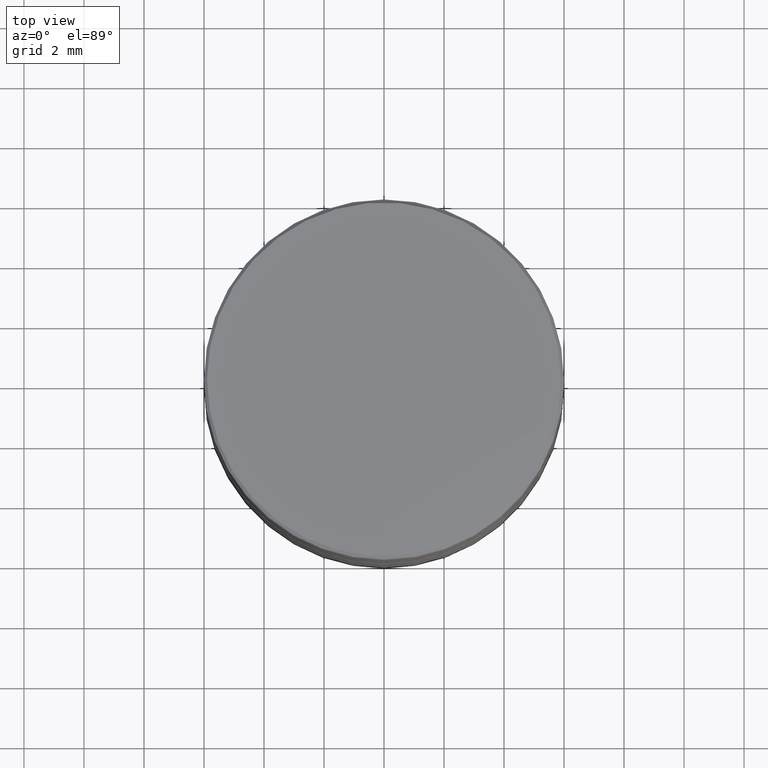
[diagram: clean part render]
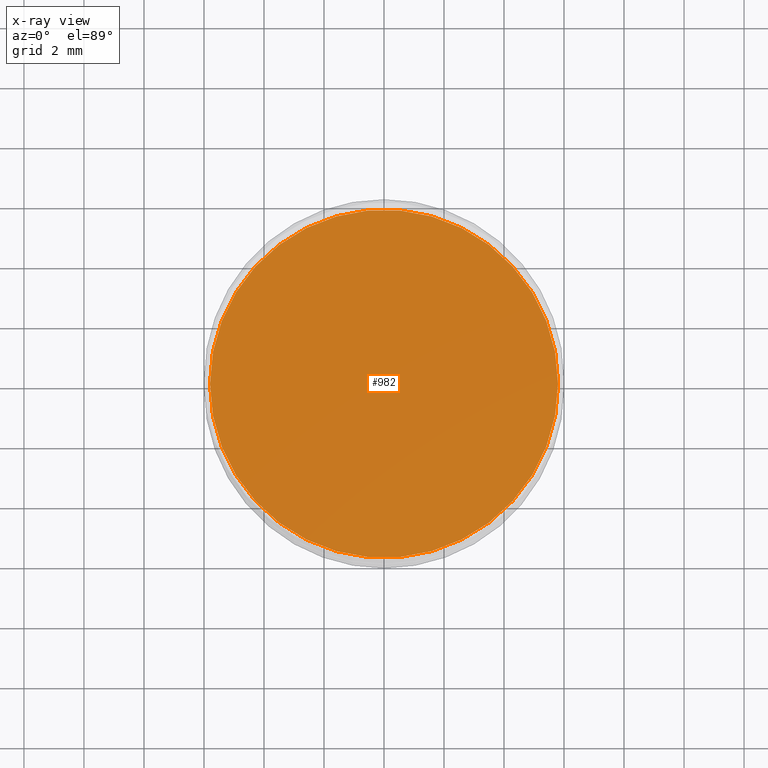
[diagram: x-ray — body ghosted, one internal face saturated and labeled with its STEP entity id]
A machine part, top view, then the same camera in x-ray: the body is ghosted and one INTERNAL B-rep face — a face not visible from any outside direction — is saturated and labeled: STEP entity #982.
In plain terms, the highlighted planar face has unit normal (0, 0, -1).
Its self-contained STEP definition (entity closure, byte-faithful):
#153 = CIRCLE ( 'NONE', #278, 5.800000000000001599 ) ;
#172 = CARTESIAN_POINT ( 'NONE',  ( 0.000000000000000000, 0.000000000000000000, -8.500000000000000000 ) ) ;
#187 = DIRECTION ( 'NONE',  ( -0.000000000000000000, -0.000000000000000000, 1.000000000000000000 ) ) ;
#263 = CIRCLE ( 'NONE', #838, 5.800000000000001599 ) ;
#278 = AXIS2_PLACEMENT_3D ( 'NONE', #572, #187, #491 ) ;
#341 = VERTEX_POINT ( 'NONE', #735 ) ;
#363 = EDGE_CURVE ( 'NONE', #782, #341, #263, .T. ) ;
#491 = DIRECTION ( 'NONE',  ( -1.000000000000000000, 0.000000000000000000, 0.000000000000000000 ) ) ;
#523 = DIRECTION ( 'NONE',  ( 0.000000000000000000, 0.000000000000000000, -1.000000000000000000 ) ) ;
#572 = CARTESIAN_POINT ( 'NONE',  ( 0.000000000000000000, 0.000000000000000000, -8.500000000000000000 ) ) ;
#575 = EDGE_LOOP ( 'NONE', ( #670, #1000 ) ) ;
#592 = EDGE_CURVE ( 'NONE', #341, #782, #153, .T. ) ;
#670 = ORIENTED_EDGE ( 'NONE', *, *, #363, .T. ) ;
#682 = FACE_OUTER_BOUND ( 'NONE', #575, .T. ) ;
#729 = DIRECTION ( 'NONE',  ( -0.000000000000000000, -0.000000000000000000, 1.000000000000000000 ) ) ;
#735 = CARTESIAN_POINT ( 'NONE',  ( 5.800000000000001599, 7.225416114969385180E-16, -8.500000000000000000 ) ) ;
#760 = DIRECTION ( 'NONE',  ( -1.000000000000000000, 0.000000000000000000, -0.000000000000000000 ) ) ;
#769 = CARTESIAN_POINT ( 'NONE',  ( 0.000000000000000000, 0.000000000000000000, -8.500000000000000000 ) ) ;
#776 = AXIS2_PLACEMENT_3D ( 'NONE', #769, #523, #760 ) ;
#781 = CARTESIAN_POINT ( 'NONE',  ( -5.800000000000001599, 0.000000000000000000, -8.500000000000000000 ) ) ;
#782 = VERTEX_POINT ( 'NONE', #781 ) ;
#838 = AXIS2_PLACEMENT_3D ( 'NONE', #172, #729, #882 ) ;
#882 = DIRECTION ( 'NONE',  ( -1.000000000000000000, 0.000000000000000000, 0.000000000000000000 ) ) ;
#928 = PLANE ( 'NONE',  #776 ) ;
#982 = ADVANCED_FACE ( 'NONE', ( #682 ), #928, .F. ) ;
#1000 = ORIENTED_EDGE ( 'NONE', *, *, #592, .T. ) ;